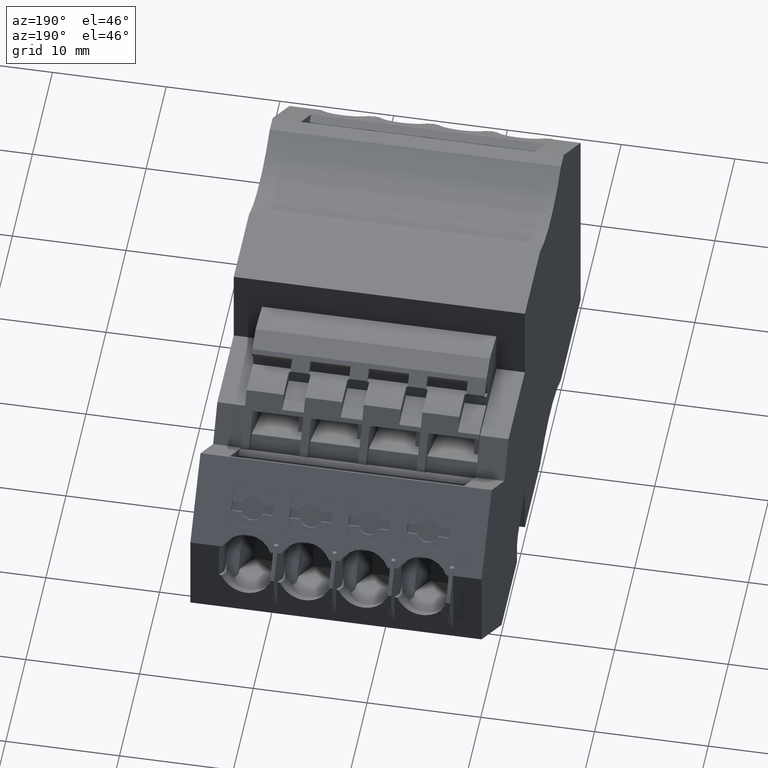
[diagram: clean part render]
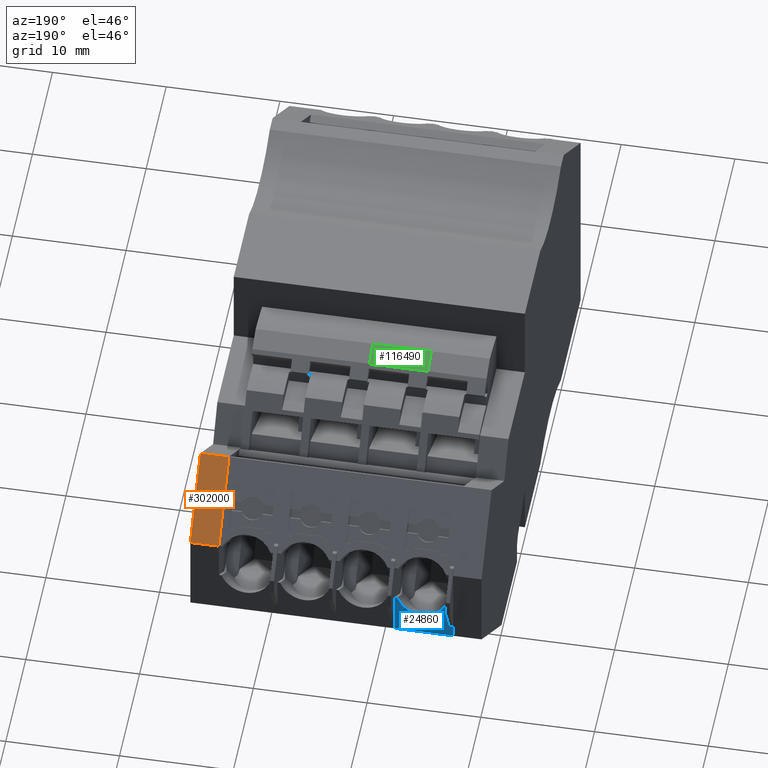
[diagram: same view with three faces highlighted in distinct colors, each labeled with its STEP entity id]
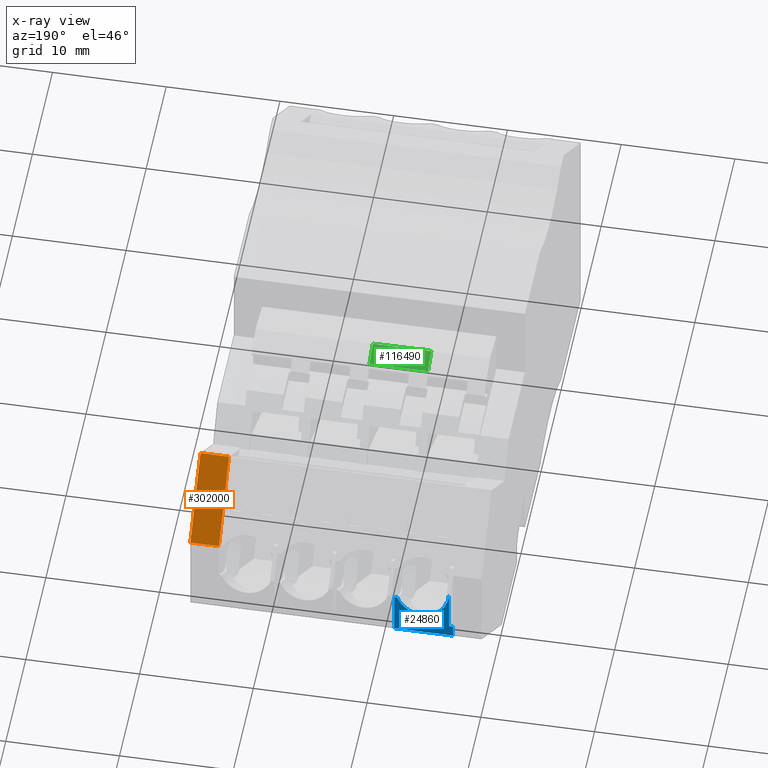
[diagram: x-ray of the same camera — body ghosted, the three highlighted faces saturated]
A machine part, auxiliary view with three faces highlighted in distinct colors.
The next image is the same camera in x-ray (body ghosted, the three faces saturated) — at least one of them is partly hidden behind the body in this view.
Their STEP definitions:

[orange] entity #302000 — the highlighted planar face has unit normal (-0, 0.766, 0.6428).
#185340=CARTESIAN_POINT('',(469.853158780892,686.448039207643,
88.719999981356));
#185350=VERTEX_POINT('',#185340);
#185380=CARTESIAN_POINT('',(460.057091935534,698.12253707817,
88.7199999772598));
#185390=DIRECTION('',(-0.642787609225153,0.766044443506127,
-2.68778880427812E-10));
#185400=VECTOR('',#185390,1.);
#185410=LINE('',#185380,#185400);
#185420=CARTESIAN_POINT('',(464.820007048897,692.446315873657,
88.7199999792514));
#185430=VERTEX_POINT('',#185420);
#185440=EDGE_CURVE('',#185350,#185430,#185410,.T.);
#298200=CARTESIAN_POINT('',(469.85315872203,686.448039210916,
91.2199999763279));
#298210=VERTEX_POINT('',#298200);
#298240=CARTESIAN_POINT('',(469.853158721435,686.448039210616,
88.7199999855263));
#298250=DIRECTION('',(2.38096615074759E-10,1.19888669890394E-10,1.));
#298260=VECTOR('',#298250,1.);
#298270=LINE('',#298240,#298260);
#298280=EDGE_CURVE('',#185350,#298210,#298270,.T.);
#299180=CARTESIAN_POINT('',(464.820007008236,692.446315855238,
91.2199999746677));
#299190=VERTEX_POINT('',#299180);
#299220=CARTESIAN_POINT('',(460.057092040521,698.122536886176,
91.2199999730967));
#299230=DIRECTION('',(-0.642787609225153,0.766044443506127,
-2.12018918733443E-10));
#299240=VECTOR('',#299230,1.);
#299250=LINE('',#299220,#299240);
#299260=EDGE_CURVE('',#298210,#299190,#299250,.T.);
#301840=CARTESIAN_POINT('',(480.967221225019,673.202815191315,
-122.430000018178));
#301850=DIRECTION('',(0.766044443506127,0.642787609225153,
-6.31039143605305E-10));
#301860=DIRECTION('',(0.642787609225154,-0.766044443506128,
2.47636814162978E-10));
#301870=AXIS2_PLACEMENT_3D('',#301840,#301850,#301860);
#301880=PLANE('',#301870);
#301890=ORIENTED_EDGE('',*,*,#298280,.F.);
#301900=ORIENTED_EDGE('',*,*,#299260,.F.);
#301910=CARTESIAN_POINT('',(464.820007020148,692.446315824678,
-50.3299999857638));
#301920=DIRECTION('',(3.42324343068774E-10,5.73756365909355E-10,1.));
#301930=VECTOR('',#301920,1.);
#301940=LINE('',#301910,#301930);
#301950=EDGE_CURVE('',#185430,#299190,#301940,.T.);
#301960=ORIENTED_EDGE('',*,*,#301950,.T.);
#301970=ORIENTED_EDGE('',*,*,#185440,.T.);
#301980=EDGE_LOOP('',(#301970,#301960,#301900,#301890));
#301990=FACE_OUTER_BOUND('',#301980,.T.);
#302000=ADVANCED_FACE('',(#301990),#301880,.T.);

[blue] entity #24860 — the highlighted planar face has unit normal (0, 1, 0).
#7040=CARTESIAN_POINT('',(469.853158765259,678.981362835314,
68.1199999778021));
#7050=DIRECTION('',(9.53020393934754E-11,4.27434416588531E-10,1.));
#7060=VECTOR('',#7050,1.);
#7070=LINE('',#7040,#7060);
#7100=CARTESIAN_POINT('',(469.853158765259,678.981362835314,
68.1199999917637));
#7110=VERTEX_POINT('',#7100);
#10980=CARTESIAN_POINT('',(469.853158763758,677.735392965184,
68.119999991504));
#10990=DIRECTION('',(1.,-1.20455928570415E-9,-9.53020388786053E-11));
#11000=DIRECTION('',(-1.2045592856499E-9,-1.,5.69281613977681E-10));
#11010=AXIS2_PLACEMENT_3D('',#10980,#10990,#11000);
#11020=PLANE('',#11010);
#11030=CARTESIAN_POINT('',(469.85315876575,678.981362837515,
73.2699999917637));
#11040=VERTEX_POINT('',#11030);
#11440=CARTESIAN_POINT('',(469.853158769059,680.084428442291,
73.2699999911179));
#11450=VERTEX_POINT('',#11440);
#11480=CARTESIAN_POINT('',(469.853158800606,707.918603540623,
73.2699999748249));
#11490=DIRECTION('',(-1.20455923013874E-9,-1.,5.85356141199929E-10));
#11500=VECTOR('',#11490,1.);
#11510=LINE('',#11480,#11500);
#11520=EDGE_CURVE('',#11450,#11040,#11510,.T.);
#24340=EDGE_CURVE('',#7110,#11040,#7070,.T.);
#24350=ORIENTED_EDGE('',*,*,#24340,.F.);
#24360=ORIENTED_EDGE('',*,*,#11520,.T.);
#24370=CARTESIAN_POINT('',(469.853158800606,707.918603540623,
73.2699999748249));
#24380=DIRECTION('',(-1.20455923013874E-9,-1.,5.85356141199929E-10));
#24390=VECTOR('',#24380,1.);
#24400=LINE('',#24370,#24390);
#24410=CARTESIAN_POINT('',(469.853158773841,682.858422490987,
73.2699999894941));
#24420=VERTEX_POINT('',#24410);
#24430=EDGE_CURVE('',#24420,#11450,#24400,.T.);
#24440=ORIENTED_EDGE('',*,*,#24430,.T.);
#24450=CARTESIAN_POINT('',(469.85315877335,682.858422488768,
68.1199999980775));
#24460=DIRECTION('',(-9.53019266711848E-11,-4.30833375936485E-10,-1.));
#24470=VECTOR('',#24460,1.);
#24480=LINE('',#24450,#24470);
#24490=CARTESIAN_POINT('',(469.853158773818,682.858422490887,
73.0377407437715));
#24500=VERTEX_POINT('',#24490);
#24510=EDGE_CURVE('',#24420,#24500,#24480,.T.);
#24520=ORIENTED_EDGE('',*,*,#24510,.F.);
#24530=CARTESIAN_POINT('',(469.853158775421,684.202991998457,
70.8699999836472));
#24540=DIRECTION('',(-1.,1.34569982934711E-9,9.53016587669485E-11));
#24550=DIRECTION('',(-1.3456997738356E-9,-1.,5.66234217872958E-10));
#24560=AXIS2_PLACEMENT_3D('',#24530,#24540,#24550);
#24570=ELLIPSE('',#24560,3.1329774959167,2.40000000000534);
#24580=CARTESIAN_POINT('',(469.853158775193,684.202991997262,
68.4699999836418));
#24590=VERTEX_POINT('',#24580);
#24600=EDGE_CURVE('',#24590,#24500,#24570,.T.);
#24610=ORIENTED_EDGE('',*,*,#24600,.T.);
#24620=CARTESIAN_POINT('',(469.853158807107,707.91860354342,
68.4699999711607));
#24630=DIRECTION('',(-1.34569977383562E-9,-1.,5.2676273327318E-10));
#24640=VECTOR('',#24630,1.);
#24650=LINE('',#24620,#24640);
#24660=CARTESIAN_POINT('',(469.85315876965,680.084428438813,
68.4699999858229));
#24670=VERTEX_POINT('',#24660);
#24680=EDGE_CURVE('',#24590,#24670,#24650,.T.);
#24690=ORIENTED_EDGE('',*,*,#24680,.F.);
#24700=CARTESIAN_POINT('',(469.853158769617,680.084428438614,
68.1199999997583));
#24710=DIRECTION('',(-9.53019268574946E-11,-5.69281532136888E-10,-1.));
#24720=VECTOR('',#24710,1.);
#24730=LINE('',#24700,#24720);
#24740=CARTESIAN_POINT('',(469.853158766587,680.084428438614,
68.1199999911179));
#24750=VERTEX_POINT('',#24740);
#24760=EDGE_CURVE('',#24670,#24750,#24730,.T.);
#24770=ORIENTED_EDGE('',*,*,#24760,.F.);
#24780=CARTESIAN_POINT('',(469.853158800115,707.918603536159,
68.119999974825));
#24790=DIRECTION('',(-1.20455923013874E-9,-1.,5.85356141199929E-10));
#24800=VECTOR('',#24790,1.);
#24810=LINE('',#24780,#24800);
#24820=EDGE_CURVE('',#24750,#7110,#24810,.T.);
#24830=ORIENTED_EDGE('',*,*,#24820,.F.);
#24840=EDGE_LOOP('',(#24830,#24770,#24690,#24610,#24520,#24440,#24360,
#24350));
#24850=FACE_OUTER_BOUND('',#24840,.T.);
#24860=ADVANCED_FACE('',(#24850),#11020,.T.);

[green] entity #116490 — the highlighted planar face has unit normal (-0, -0.4147, -0.91).
#91830=CARTESIAN_POINT('',(453.176670323783,694.015353201837,
88.719999985676));
#91840=DIRECTION('',(4.53854173469528E-10,2.08556494917798E-10,1.));
#91850=VECTOR('',#91840,1.);
#91860=LINE('',#91830,#91850);
#116140=CARTESIAN_POINT('',(451.834136132603,694.627181286076,
93.8699999763356));
#116150=DIRECTION('',(-0.414693243907079,-0.909961270306503,
3.77988592502916E-10));
#116160=DIRECTION('',(-0.909961270306503,0.414693243907079,
-2.31297234104733E-10));
#116170=AXIS2_PLACEMENT_3D('',#116140,#116150,#116160);
#116180=PLANE('',#116170);
#116190=CARTESIAN_POINT('',(453.176670316771,694.015353198615,
73.2699999842846));
#116200=VERTEX_POINT('',#116190);
#116210=CARTESIAN_POINT('',(453.176670319108,694.015353199689,
78.4199999842847));
#116220=VERTEX_POINT('',#116210);
#116230=EDGE_CURVE('',#116200,#116220,#91860,.T.);
#116240=ORIENTED_EDGE('',*,*,#116230,.F.);
#116250=CARTESIAN_POINT('',(455.081724983251,693.147169767851,
78.4199999846419));
#116260=DIRECTION('',(-0.909961270306503,0.414693243907079,
-1.70650660506429E-10));
#116270=VECTOR('',#116260,1.);
#116280=LINE('',#116250,#116270);
#116290=CARTESIAN_POINT('',(451.482223159515,694.787557261741,
78.4199999839668));
#116300=VERTEX_POINT('',#116290);
#116310=EDGE_CURVE('',#116220,#116300,#116280,.T.);
#116320=ORIENTED_EDGE('',*,*,#116310,.F.);
#116330=CARTESIAN_POINT('',(451.482223161352,694.787557267704,
93.8699999774464));
#116340=DIRECTION('',(-1.6669925506053E-10,-4.90742847764455E-10,-1.));
#116350=VECTOR('',#116340,1.);
#116360=LINE('',#116330,#116350);
#116370=CARTESIAN_POINT('',(451.482223159119,694.787557257687,
73.2699999859846));
#116380=VERTEX_POINT('',#116370);
#116390=EDGE_CURVE('',#116300,#116380,#116360,.T.);
#116400=ORIENTED_EDGE('',*,*,#116390,.F.);
#116410=CARTESIAN_POINT('',(455.081724984511,693.147169765138,
73.2699999846419));
#116420=DIRECTION('',(-0.909961270306503,0.414693243907079,
-1.70650660506429E-10));
#116430=VECTOR('',#116420,1.);
#116440=LINE('',#116410,#116430);
#116450=EDGE_CURVE('',#116200,#116380,#116440,.T.);
#116460=ORIENTED_EDGE('',*,*,#116450,.T.);
#116470=EDGE_LOOP('',(#116460,#116400,#116320,#116240));
#116480=FACE_OUTER_BOUND('',#116470,.T.);
#116490=ADVANCED_FACE('',(#116480),#116180,.F.);